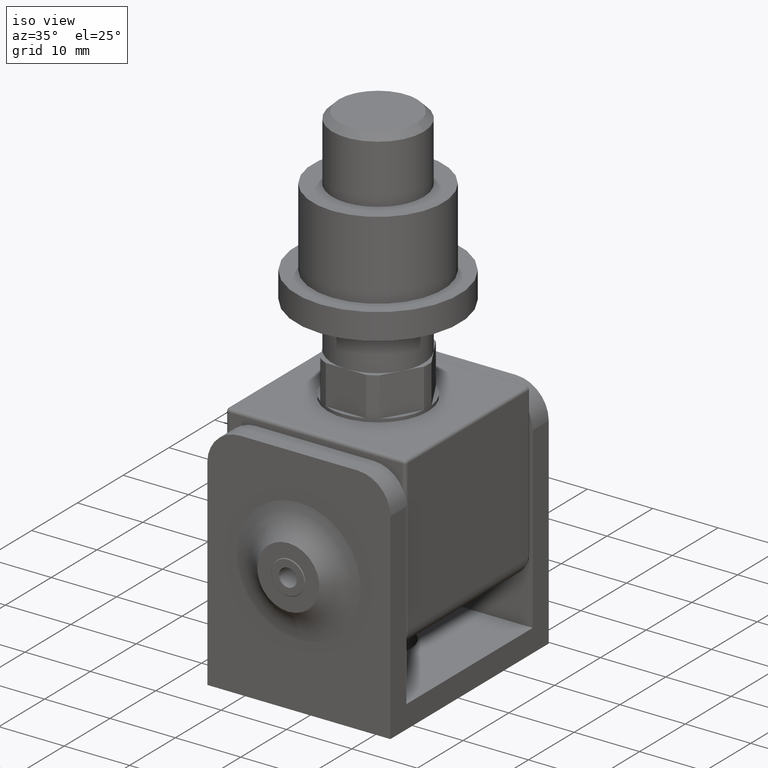
[diagram: clean part render]
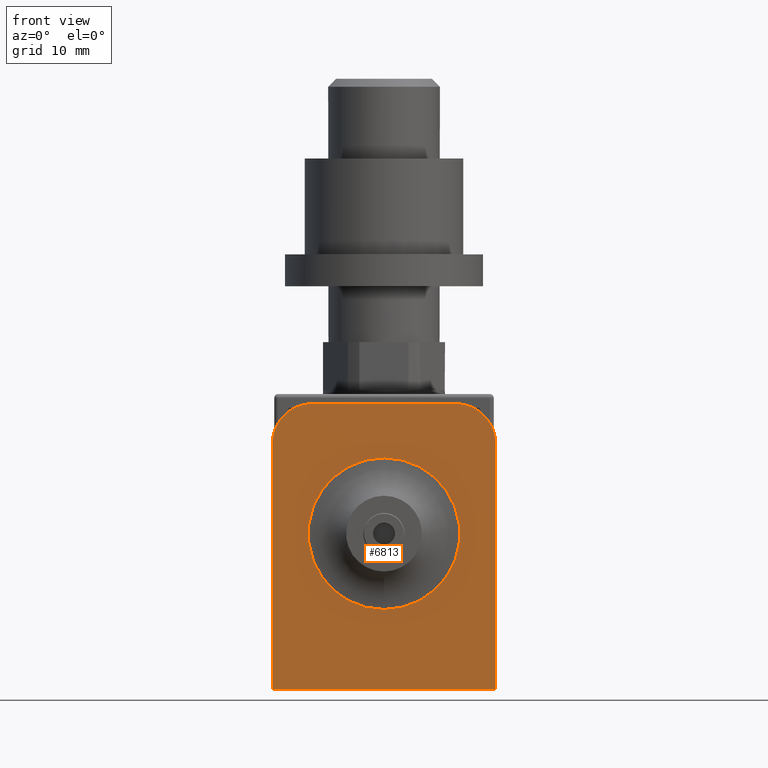
[diagram: tour spotlight — one face highlighted and labeled with its STEP entity id]
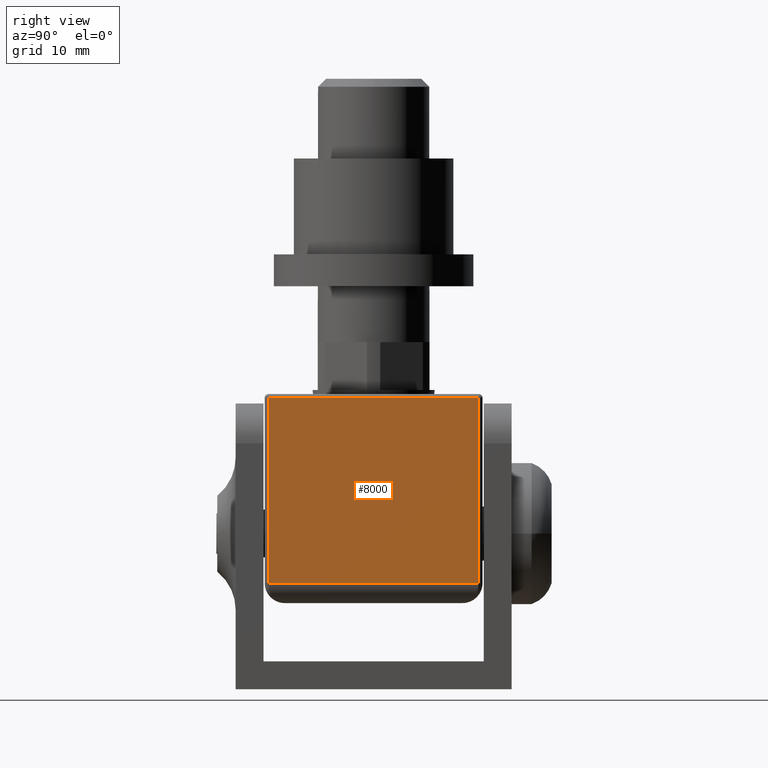
[diagram: tour spotlight — one face highlighted and labeled with its STEP entity id]
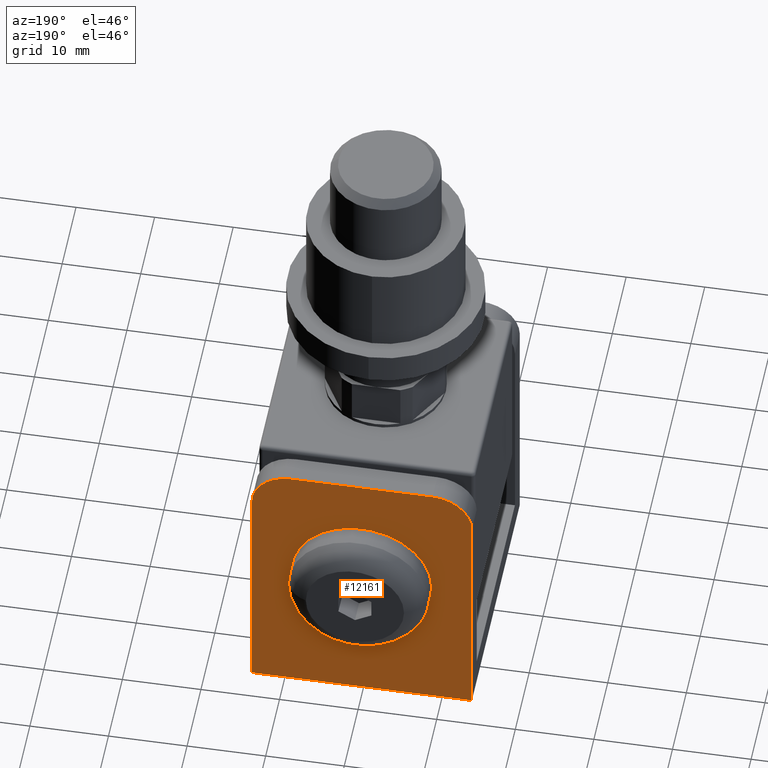
[diagram: tour spotlight — one face highlighted and labeled with its STEP entity id]
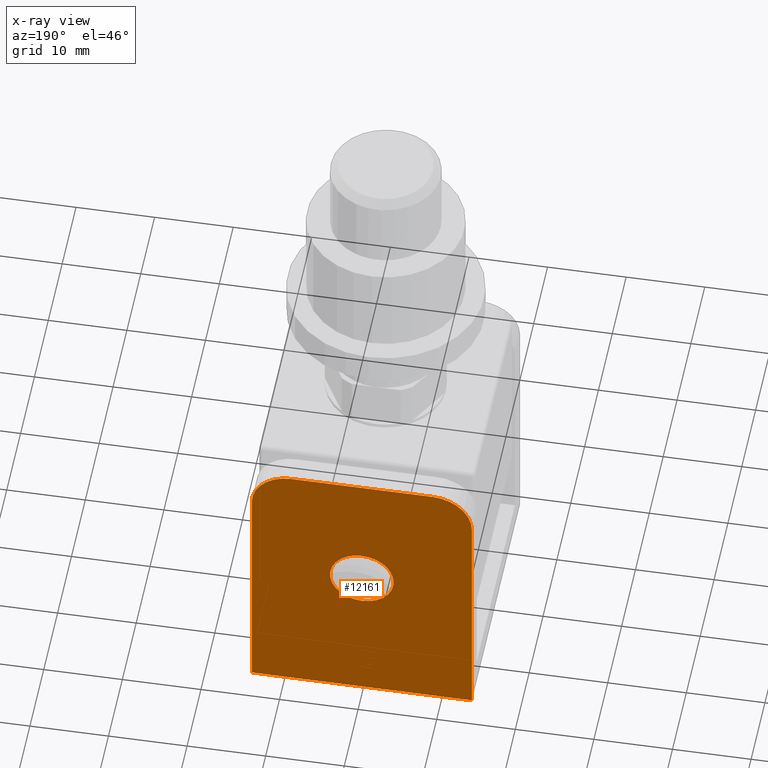
[diagram: x-ray of the same camera — body ghosted, this tour face saturated]
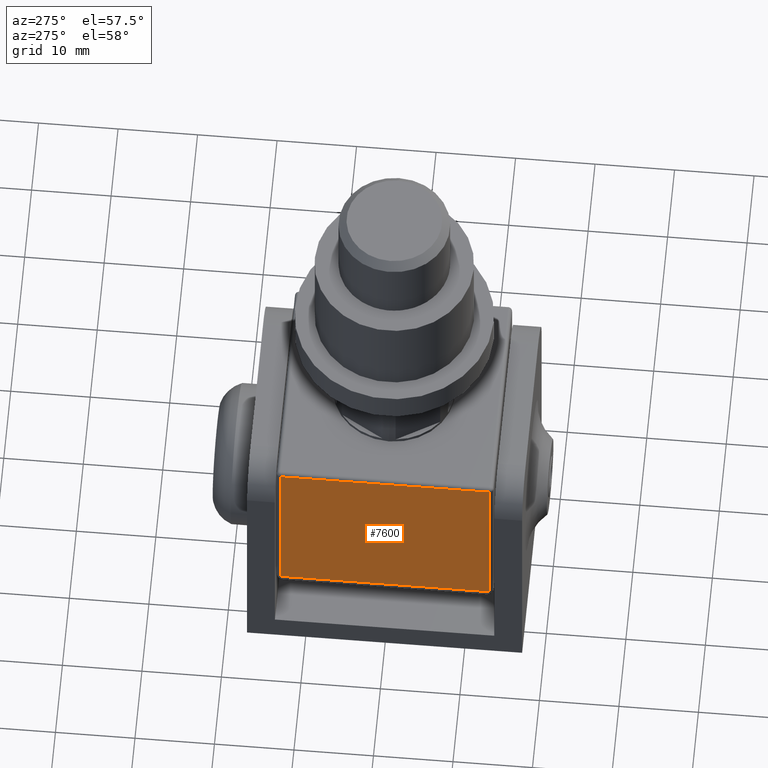
[diagram: tour spotlight — one face highlighted and labeled with its STEP entity id]
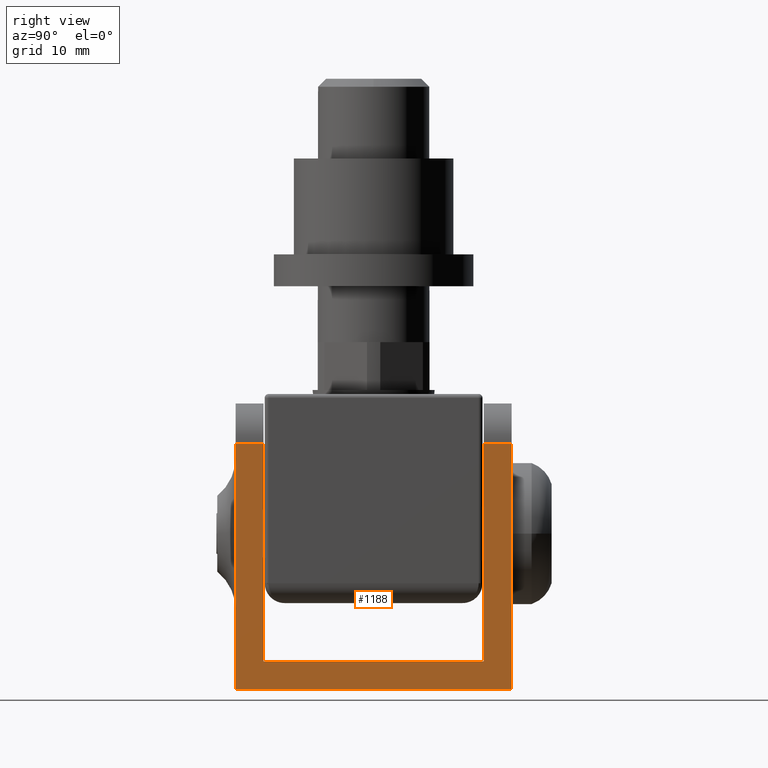
[diagram: tour spotlight — one face highlighted and labeled with its STEP entity id]
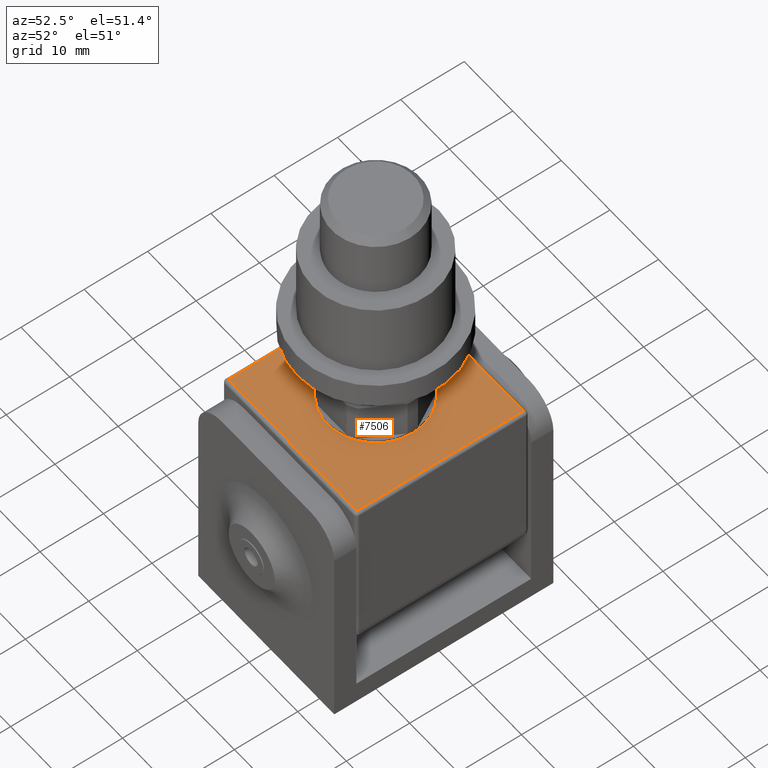
[diagram: tour spotlight — one face highlighted and labeled with its STEP entity id]
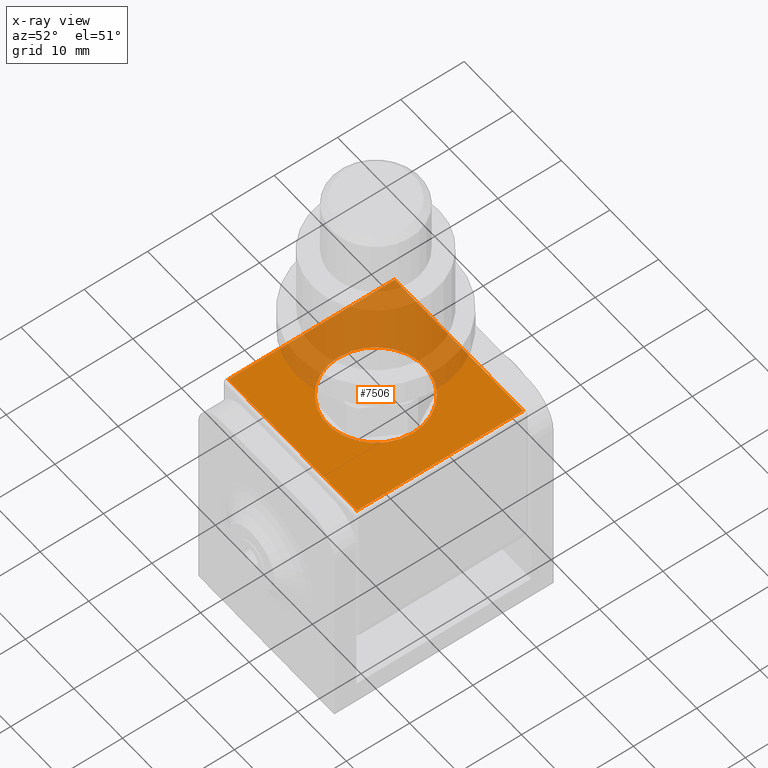
[diagram: x-ray of the same camera — body ghosted, this tour face saturated]
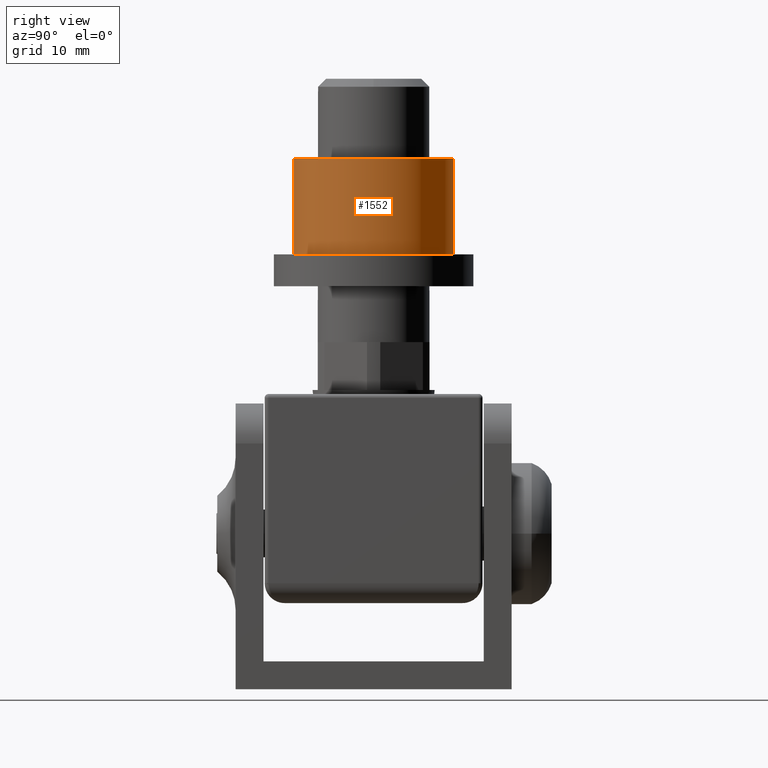
[diagram: tour spotlight — one face highlighted and labeled with its STEP entity id]
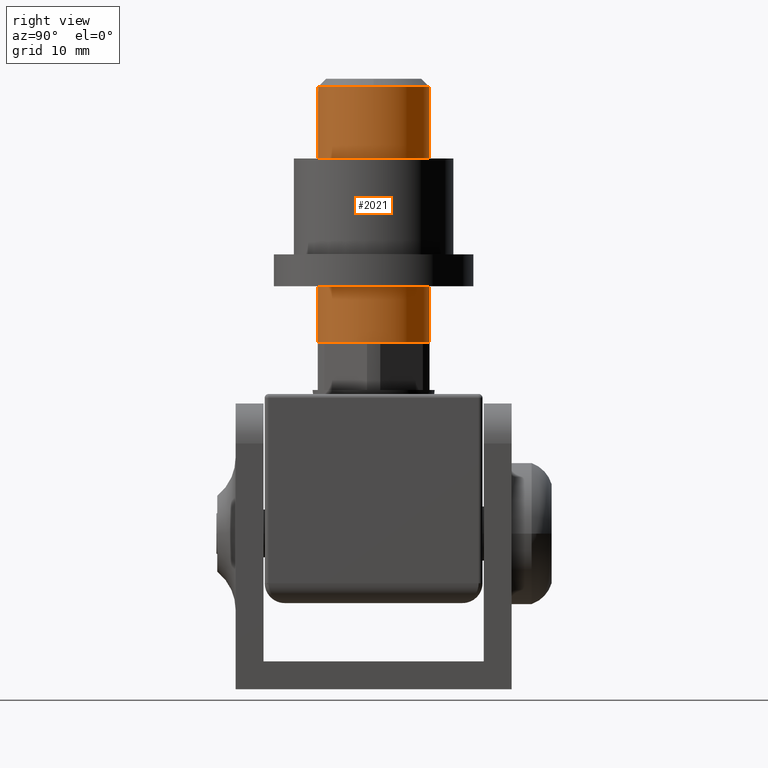
[diagram: tour spotlight — one face highlighted and labeled with its STEP entity id]
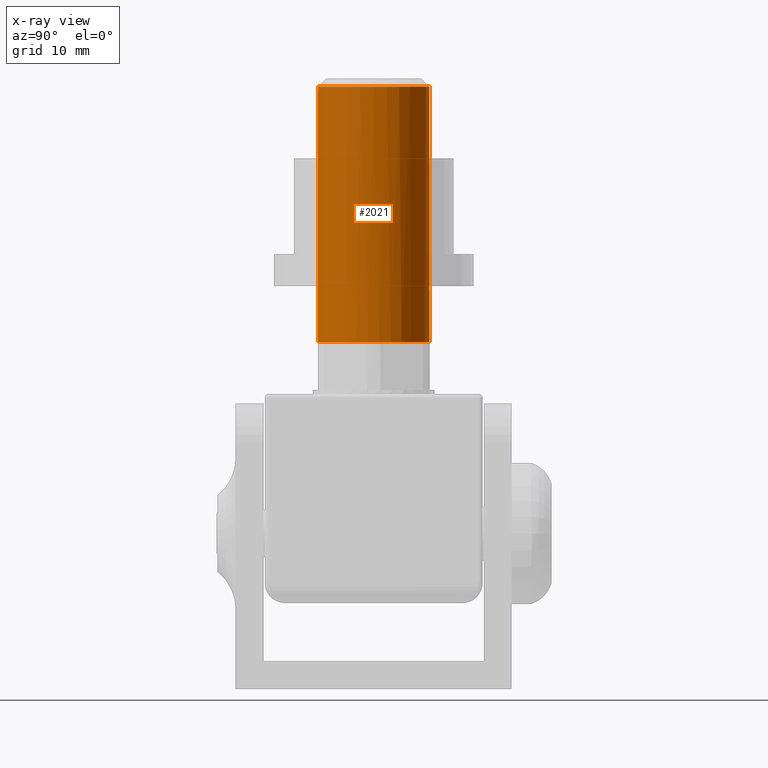
[diagram: x-ray of the same camera — body ghosted, this tour face saturated]
A machine part: a face-by-face anatomy tour. The part has 359 B-rep faces; the first image is the clean iso view, then the 8 largest visible faces are spotlighted one at a time (largest first), each with its STEP entity span.

Face 1 — front view, entity #6813. In plain terms, the highlighted planar face has unit normal (0, 1, 0).
Definition (entity closure, byte-faithful):
#114 = AXIS2_PLACEMENT_3D ( 'NONE', #11713, #4783, #436 ) ;
#273 = CARTESIAN_POINT ( 'NONE',  ( 14.00000000000000000, -17.30000000000000426, 17.90000000000000568 ) ) ;
#280 = EDGE_CURVE ( 'NONE', #5536, #10974, #11242, .T. ) ;
#282 = VERTEX_POINT ( 'NONE', #6825 ) ;
#419 = LINE ( 'NONE', #2019, #7124 ) ;
#436 = DIRECTION ( 'NONE',  ( 0.000000000000000000, 0.000000000000000000, 1.000000000000000000 ) ) ;
#725 = CARTESIAN_POINT ( 'NONE',  ( 14.00000000000000000, -17.29999999999999716, -17.90000000000000568 ) ) ;
#1218 = EDGE_CURVE ( 'NONE', #5536, #282, #9403, .T. ) ;
#1242 = VERTEX_POINT ( 'NONE', #11973 ) ;
#1745 = AXIS2_PLACEMENT_3D ( 'NONE', #725, #7737, #6489 ) ;
#2019 = CARTESIAN_POINT ( 'NONE',  ( -14.00000000000000000, -17.29999999999999716, -17.90000000000000568 ) ) ;
#3705 = LINE ( 'NONE', #5044, #12007 ) ;
#3893 = DIRECTION ( 'NONE',  ( -1.000000000000000000, -0.000000000000000000, -0.000000000000000000 ) ) ;
#4157 = CARTESIAN_POINT ( 'NONE',  ( 14.00000000000000000, -17.30000000000000426, 12.90000000000000213 ) ) ;
#4276 = VERTEX_POINT ( 'NONE', #14628 ) ;
#4336 = VECTOR ( 'NONE', #12957, 1000.000000000000000 ) ;
#4393 = DIRECTION ( 'NONE',  ( -0.000000000000000000, -1.000000000000000000, -6.599491484694385234E-16 ) ) ;
#4664 = VERTEX_POINT ( 'NONE', #9573 ) ;
#4783 = DIRECTION ( 'NONE',  ( 0.000000000000000000, -1.000000000000000000, -1.938238520644477159E-16 ) ) ;
#4824 = VERTEX_POINT ( 'NONE', #8900 ) ;
#5044 = CARTESIAN_POINT ( 'NONE',  ( 14.00000000000000000, -17.29999999999999716, -17.90000000000000568 ) ) ;
#5313 = PLANE ( 'NONE',  #1745 ) ;
#5536 = VERTEX_POINT ( 'NONE', #4157 ) ;
#5703 = EDGE_CURVE ( 'NONE', #10974, #4824, #3705, .T. ) ;
#5809 = DIRECTION ( 'NONE',  ( 0.000000000000000000, -1.000000000000000000, -1.938238520644477159E-16 ) ) ;
#5950 = FACE_BOUND ( 'NONE', #7409, .T. ) ;
#6087 = ORIENTED_EDGE ( 'NONE', *, *, #5703, .F. ) ;
#6489 = DIRECTION ( 'NONE',  ( 0.000000000000000000, -1.938238520644477159E-16, 1.000000000000000000 ) ) ;
#6628 = CARTESIAN_POINT ( 'NONE',  ( 14.00000000000000000, -17.29999999999999716, -17.90000000000000568 ) ) ;
#6780 = ORIENTED_EDGE ( 'NONE', *, *, #9171, .F. ) ;
#6813 = ADVANCED_FACE ( 'NONE', ( #5950, #8692 ), #5313, .F. ) ;
#6825 = CARTESIAN_POINT ( 'NONE',  ( 9.000000000000001776, -17.30000000000000426, 17.90000000000000568 ) ) ;
#6875 = ORIENTED_EDGE ( 'NONE', *, *, #12609, .T. ) ;
#6978 = DIRECTION ( 'NONE',  ( -0.000000000000000000, 1.938238520644477159E-16, -1.000000000000000000 ) ) ;
#7124 = VECTOR ( 'NONE', #12385, 1000.000000000000000 ) ;
#7409 = EDGE_LOOP ( 'NONE', ( #6780 ) ) ;
#7467 = AXIS2_PLACEMENT_3D ( 'NONE', #11312, #4393, #14775 ) ;
#7737 = DIRECTION ( 'NONE',  ( -0.000000000000000000, 1.000000000000000000, 1.938238520644477159E-16 ) ) ;
#7819 = CARTESIAN_POINT ( 'NONE',  ( -9.000000000000000000, -17.30000000000000426, 12.90000000000000213 ) ) ;
#8508 = ORIENTED_EDGE ( 'NONE', *, *, #14944, .T. ) ;
#8690 = CIRCLE ( 'NONE', #9978, 5.000000000000000888 ) ;
#8692 = FACE_OUTER_BOUND ( 'NONE', #11675, .T. ) ;
#8900 = CARTESIAN_POINT ( 'NONE',  ( -14.00000000000000000, -17.29999999999999716, -17.90000000000000568 ) ) ;
#9171 = EDGE_CURVE ( 'NONE', #1242, #1242, #10768, .T. ) ;
#9347 = CARTESIAN_POINT ( 'NONE',  ( 14.00000000000000000, -17.29999999999999716, -17.90000000000000568 ) ) ;
#9403 = CIRCLE ( 'NONE', #114, 5.000000000000000888 ) ;
#9573 = CARTESIAN_POINT ( 'NONE',  ( -14.00000000000000000, -17.30000000000000426, 12.90000000000000213 ) ) ;
#9683 = ORIENTED_EDGE ( 'NONE', *, *, #14350, .T. ) ;
#9978 = AXIS2_PLACEMENT_3D ( 'NONE', #7819, #5809, #11581 ) ;
#10768 = CIRCLE ( 'NONE', #7467, 9.500000000000000000 ) ;
#10845 = LINE ( 'NONE', #273, #4336 ) ;
#10974 = VERTEX_POINT ( 'NONE', #6628 ) ;
#11057 = VECTOR ( 'NONE', #6978, 1000.000000000000000 ) ;
#11242 = LINE ( 'NONE', #9347, #11057 ) ;
#11312 = CARTESIAN_POINT ( 'NONE',  ( 0.000000000000000000, -17.30000000000000782, 1.599999999999997202 ) ) ;
#11581 = DIRECTION ( 'NONE',  ( 0.000000000000000000, 0.000000000000000000, 1.000000000000000000 ) ) ;
#11675 = EDGE_LOOP ( 'NONE', ( #13602, #14122, #9683, #8508, #6875, #6087 ) ) ;
#11713 = CARTESIAN_POINT ( 'NONE',  ( 9.000000000000001776, -17.30000000000000426, 12.90000000000000213 ) ) ;
#11973 = CARTESIAN_POINT ( 'NONE',  ( 0.000000000000000000, -17.30000000000000071, -7.900000000000002132 ) ) ;
#12007 = VECTOR ( 'NONE', #3893, 1000.000000000000000 ) ;
#12385 = DIRECTION ( 'NONE',  ( -0.000000000000000000, 1.938238520644477159E-16, -1.000000000000000000 ) ) ;
#12609 = EDGE_CURVE ( 'NONE', #4664, #4824, #419, .T. ) ;
#12957 = DIRECTION ( 'NONE',  ( -1.000000000000000000, -0.000000000000000000, -0.000000000000000000 ) ) ;
#13602 = ORIENTED_EDGE ( 'NONE', *, *, #280, .F. ) ;
#14122 = ORIENTED_EDGE ( 'NONE', *, *, #1218, .T. ) ;
#14350 = EDGE_CURVE ( 'NONE', #282, #4276, #10845, .T. ) ;
#14628 = CARTESIAN_POINT ( 'NONE',  ( -9.000000000000000000, -17.30000000000000426, 17.90000000000000568 ) ) ;
#14775 = DIRECTION ( 'NONE',  ( 0.000000000000000000, 7.304098846218134667E-16, -1.000000000000000000 ) ) ;
#14944 = EDGE_CURVE ( 'NONE', #4276, #4664, #8690, .T. ) ;

Face 2 — right view, entity #8000. In plain terms, the highlighted planar face has unit normal (-1, 0, 0).
Definition (entity closure, byte-faithful):
#48 = CARTESIAN_POINT ( 'NONE',  ( 13.74999999999999822, 13.15000000000000036, 13.10000000000000142 ) ) ;
#953 = PLANE ( 'NONE',  #8869 ) ;
#1123 = LINE ( 'NONE', #5835, #4736 ) ;
#1486 = LINE ( 'NONE', #14090, #5476 ) ;
#2366 = CARTESIAN_POINT ( 'NONE',  ( 13.74999999999999822, 13.15000000000000036, 12.60000000000000142 ) ) ;
#2420 = EDGE_CURVE ( 'NONE', #6619, #10459, #1486, .T. ) ;
#2434 = ORIENTED_EDGE ( 'NONE', *, *, #2420, .T. ) ;
#2914 = EDGE_CURVE ( 'NONE', #5341, #4420, #11251, .T. ) ;
#2942 = VECTOR ( 'NONE', #6946, 1000.000000000000000 ) ;
#3010 = LINE ( 'NONE', #10613, #12939 ) ;
#3336 = DIRECTION ( 'NONE',  ( -1.000000000000000000, 0.000000000000000000, 1.324216393875425342E-16 ) ) ;
#4420 = VERTEX_POINT ( 'NONE', #2366 ) ;
#4736 = VECTOR ( 'NONE', #5669, 1000.000000000000000 ) ;
#5152 = ORIENTED_EDGE ( 'NONE', *, *, #2914, .T. ) ;
#5341 = VERTEX_POINT ( 'NONE', #14450 ) ;
#5476 = VECTOR ( 'NONE', #8431, 1000.000000000000000 ) ;
#5669 = DIRECTION ( 'NONE',  ( 0.000000000000000000, -1.000000000000000000, 0.000000000000000000 ) ) ;
#5835 = CARTESIAN_POINT ( 'NONE',  ( 13.74999999999999822, 13.65000000000000036, 12.60000000000000142 ) ) ;
#6619 = VERTEX_POINT ( 'NONE', #10035 ) ;
#6772 = CARTESIAN_POINT ( 'NONE',  ( 13.74999999999999467, 13.65000000000000036, -13.09999999999999787 ) ) ;
#6946 = DIRECTION ( 'NONE',  ( 1.324216393875425342E-16, -0.000000000000000000, 1.000000000000000000 ) ) ;
#7592 = ORIENTED_EDGE ( 'NONE', *, *, #9637, .T. ) ;
#8000 = ADVANCED_FACE ( 'NONE', ( #11339 ), #953, .F. ) ;
#8431 = DIRECTION ( 'NONE',  ( -1.324216393875425342E-16, 0.000000000000000000, -1.000000000000000000 ) ) ;
#8869 = AXIS2_PLACEMENT_3D ( 'NONE', #6772, #3336, #9071 ) ;
#8970 = EDGE_LOOP ( 'NONE', ( #9871, #2434, #7592, #5152 ) ) ;
#9071 = DIRECTION ( 'NONE',  ( 1.324216393875425342E-16, 0.000000000000000000, 1.000000000000000000 ) ) ;
#9637 = EDGE_CURVE ( 'NONE', #10459, #5341, #3010, .T. ) ;
#9871 = ORIENTED_EDGE ( 'NONE', *, *, #13121, .T. ) ;
#10035 = CARTESIAN_POINT ( 'NONE',  ( 13.74999999999999822, -13.15000000000000036, 12.60000000000000142 ) ) ;
#10459 = VERTEX_POINT ( 'NONE', #12645 ) ;
#10613 = CARTESIAN_POINT ( 'NONE',  ( 13.74999999999999467, 13.65000000000000036, -10.59999999999999609 ) ) ;
#10761 = DIRECTION ( 'NONE',  ( -0.000000000000000000, 1.000000000000000000, -0.000000000000000000 ) ) ;
#11251 = LINE ( 'NONE', #48, #2942 ) ;
#11339 = FACE_OUTER_BOUND ( 'NONE', #8970, .T. ) ;
#12645 = CARTESIAN_POINT ( 'NONE',  ( 13.74999999999999467, -13.15000000000000036, -10.59999999999999609 ) ) ;
#12939 = VECTOR ( 'NONE', #10761, 1000.000000000000000 ) ;
#13121 = EDGE_CURVE ( 'NONE', #4420, #6619, #1123, .T. ) ;
#14090 = CARTESIAN_POINT ( 'NONE',  ( 13.74999999999999467, -13.15000000000000036, -13.09999999999999787 ) ) ;
#14450 = CARTESIAN_POINT ( 'NONE',  ( 13.74999999999999467, 13.15000000000000036, -10.59999999999999609 ) ) ;

Face 3 — auxiliary view, entity #12161. An x-ray twin of the same camera follows (body ghosted, this face saturated) — the face is partly hidden behind the body. In plain terms, the highlighted planar face has unit normal (0, -1, -0).
Definition (entity closure, byte-faithful):
#1 = DIRECTION ( 'NONE',  ( 1.040834085586084059E-15, 0.000000000000000000, -1.000000000000000000 ) ) ;
#717 = VECTOR ( 'NONE', #9428, 1000.000000000000000 ) ;
#963 = AXIS2_PLACEMENT_3D ( 'NONE', #8272, #2466, #12838 ) ;
#1162 = EDGE_CURVE ( 'NONE', #13571, #2317, #4231, .T. ) ;
#1254 = ORIENTED_EDGE ( 'NONE', *, *, #5226, .F. ) ;
#1440 = AXIS2_PLACEMENT_3D ( 'NONE', #13498, #12744, #1 ) ;
#1564 = DIRECTION ( 'NONE',  ( 0.000000000000000000, -1.000000000000000000, -9.691192603222388261E-17 ) ) ;
#1839 = LINE ( 'NONE', #8618, #11617 ) ;
#1961 = VECTOR ( 'NONE', #11190, 1000.000000000000000 ) ;
#1973 = DIRECTION ( 'NONE',  ( -0.000000000000000000, -9.691192603222388261E-17, 1.000000000000000000 ) ) ;
#1983 = DIRECTION ( 'NONE',  ( -0.000000000000000000, 1.000000000000000000, 9.691192603222388261E-17 ) ) ;
#2046 = EDGE_CURVE ( 'NONE', #13182, #13182, #5652, .T. ) ;
#2317 = VERTEX_POINT ( 'NONE', #9241 ) ;
#2466 = DIRECTION ( 'NONE',  ( 0.000000000000000000, 1.000000000000000000, 1.101411730778924924E-16 ) ) ;
#2891 = CARTESIAN_POINT ( 'NONE',  ( 14.00000000000000000, 17.30000000000000071, 12.90000000000000213 ) ) ;
#3160 = DIRECTION ( 'NONE',  ( 0.000000000000000000, 0.000000000000000000, -1.000000000000000000 ) ) ;
#3639 = ORIENTED_EDGE ( 'NONE', *, *, #2046, .F. ) ;
#4119 = ORIENTED_EDGE ( 'NONE', *, *, #1162, .T. ) ;
#4231 = LINE ( 'NONE', #8944, #12730 ) ;
#4322 = CARTESIAN_POINT ( 'NONE',  ( 14.00000000000000000, 17.30000000000000426, -17.90000000000000568 ) ) ;
#5226 = EDGE_CURVE ( 'NONE', #5683, #11842, #9938, .T. ) ;
#5236 = DIRECTION ( 'NONE',  ( -1.000000000000000000, -0.000000000000000000, -0.000000000000000000 ) ) ;
#5374 = CARTESIAN_POINT ( 'NONE',  ( -9.000000000000000000, 17.30000000000000071, 17.89999999999999858 ) ) ;
#5519 = ORIENTED_EDGE ( 'NONE', *, *, #7447, .T. ) ;
#5581 = LINE ( 'NONE', #4322, #1961 ) ;
#5652 = CIRCLE ( 'NONE', #963, 4.049999999999999822 ) ;
#5683 = VERTEX_POINT ( 'NONE', #9182 ) ;
#6464 = CIRCLE ( 'NONE', #13255, 5.000000000000000888 ) ;
#7248 = ORIENTED_EDGE ( 'NONE', *, *, #14555, .T. ) ;
#7272 = CARTESIAN_POINT ( 'NONE',  ( -14.00000000000000000, 17.30000000000000426, -17.90000000000000568 ) ) ;
#7305 = FACE_BOUND ( 'NONE', #13537, .T. ) ;
#7447 = EDGE_CURVE ( 'NONE', #13409, #11842, #6464, .T. ) ;
#8272 = CARTESIAN_POINT ( 'NONE',  ( 0.000000000000000000, 17.30000000000000426, 1.599999999999997202 ) ) ;
#8301 = CARTESIAN_POINT ( 'NONE',  ( 14.00000000000000000, 17.30000000000000071, 17.89999999999999858 ) ) ;
#8417 = CARTESIAN_POINT ( 'NONE',  ( 9.000000000000001776, 17.30000000000000071, 17.89999999999999858 ) ) ;
#8618 = CARTESIAN_POINT ( 'NONE',  ( 14.00000000000000000, 17.30000000000000071, 17.89999999999999858 ) ) ;
#8944 = CARTESIAN_POINT ( 'NONE',  ( -14.00000000000000000, 17.30000000000000071, 17.89999999999999858 ) ) ;
#8957 = CARTESIAN_POINT ( 'NONE',  ( 9.000000000000001776, 17.30000000000000071, 12.90000000000000213 ) ) ;
#9182 = CARTESIAN_POINT ( 'NONE',  ( 14.00000000000000000, 17.30000000000000426, -17.90000000000000568 ) ) ;
#9241 = CARTESIAN_POINT ( 'NONE',  ( -14.00000000000000000, 17.30000000000000071, 12.90000000000000213 ) ) ;
#9395 = CIRCLE ( 'NONE', #1440, 5.000000000000000888 ) ;
#9428 = DIRECTION ( 'NONE',  ( -0.000000000000000000, -9.691192603222388261E-17, 1.000000000000000000 ) ) ;
#9938 = LINE ( 'NONE', #8301, #717 ) ;
#10633 = ORIENTED_EDGE ( 'NONE', *, *, #14934, .T. ) ;
#10752 = AXIS2_PLACEMENT_3D ( 'NONE', #13696, #1564, #12270 ) ;
#11190 = DIRECTION ( 'NONE',  ( -1.000000000000000000, -0.000000000000000000, -0.000000000000000000 ) ) ;
#11617 = VECTOR ( 'NONE', #5236, 1000.000000000000000 ) ;
#11842 = VERTEX_POINT ( 'NONE', #2891 ) ;
#12161 = ADVANCED_FACE ( 'NONE', ( #7305, #14009 ), #13642, .F. ) ;
#12212 = EDGE_LOOP ( 'NONE', ( #12679, #5519, #1254, #7248, #4119, #10633 ) ) ;
#12270 = DIRECTION ( 'NONE',  ( 0.000000000000000000, 9.691192603222388261E-17, -1.000000000000000000 ) ) ;
#12679 = ORIENTED_EDGE ( 'NONE', *, *, #12882, .F. ) ;
#12730 = VECTOR ( 'NONE', #1973, 1000.000000000000000 ) ;
#12744 = DIRECTION ( 'NONE',  ( -0.000000000000000000, 1.000000000000000000, 9.691192603222388261E-17 ) ) ;
#12838 = DIRECTION ( 'NONE',  ( 0.000000000000000000, 0.000000000000000000, 1.000000000000000000 ) ) ;
#12882 = EDGE_CURVE ( 'NONE', #13409, #14559, #1839, .T. ) ;
#13182 = VERTEX_POINT ( 'NONE', #14282 ) ;
#13255 = AXIS2_PLACEMENT_3D ( 'NONE', #8957, #1983, #3160 ) ;
#13409 = VERTEX_POINT ( 'NONE', #8417 ) ;
#13498 = CARTESIAN_POINT ( 'NONE',  ( -9.000000000000000000, 17.30000000000000071, 12.90000000000000213 ) ) ;
#13537 = EDGE_LOOP ( 'NONE', ( #3639 ) ) ;
#13571 = VERTEX_POINT ( 'NONE', #7272 ) ;
#13642 = PLANE ( 'NONE',  #10752 ) ;
#13696 = CARTESIAN_POINT ( 'NONE',  ( 14.00000000000000000, 17.30000000000000071, 17.89999999999999858 ) ) ;
#14009 = FACE_OUTER_BOUND ( 'NONE', #12212, .T. ) ;
#14282 = CARTESIAN_POINT ( 'NONE',  ( 0.000000000000000000, 17.30000000000000426, 5.649999999999996803 ) ) ;
#14555 = EDGE_CURVE ( 'NONE', #5683, #13571, #5581, .T. ) ;
#14559 = VERTEX_POINT ( 'NONE', #5374 ) ;
#14934 = EDGE_CURVE ( 'NONE', #2317, #14559, #9395, .T. ) ;

Face 4 — auxiliary view, entity #7600. In plain terms, the highlighted planar face has unit normal (1, 0, -0).
Definition (entity closure, byte-faithful):
#71 = CARTESIAN_POINT ( 'NONE',  ( -13.75000000000000355, -13.15000000000000036, -13.09999999999999787 ) ) ;
#83 = VERTEX_POINT ( 'NONE', #1316 ) ;
#124 = DIRECTION ( 'NONE',  ( 1.324216393875425342E-16, -0.000000000000000000, 1.000000000000000000 ) ) ;
#1316 = CARTESIAN_POINT ( 'NONE',  ( -13.75000000000000000, -13.15000000000000036, 12.60000000000000142 ) ) ;
#1852 = CARTESIAN_POINT ( 'NONE',  ( -13.75000000000000000, 13.65000000000000036, 12.60000000000000142 ) ) ;
#2323 = CARTESIAN_POINT ( 'NONE',  ( -13.75000000000000355, 13.65000000000000036, -10.59999999999999609 ) ) ;
#2381 = ORIENTED_EDGE ( 'NONE', *, *, #8364, .T. ) ;
#2753 = LINE ( 'NONE', #71, #4203 ) ;
#3038 = FACE_OUTER_BOUND ( 'NONE', #14922, .T. ) ;
#3240 = DIRECTION ( 'NONE',  ( -0.000000000000000000, 1.000000000000000000, -0.000000000000000000 ) ) ;
#4037 = VECTOR ( 'NONE', #11465, 1000.000000000000000 ) ;
#4100 = VECTOR ( 'NONE', #4899, 1000.000000000000000 ) ;
#4203 = VECTOR ( 'NONE', #124, 1000.000000000000000 ) ;
#4310 = CARTESIAN_POINT ( 'NONE',  ( -13.75000000000000355, 13.15000000000000036, -10.59999999999999609 ) ) ;
#4318 = EDGE_CURVE ( 'NONE', #83, #10394, #8727, .T. ) ;
#4831 = VERTEX_POINT ( 'NONE', #5370 ) ;
#4899 = DIRECTION ( 'NONE',  ( -1.324216393875425342E-16, -0.000000000000000000, -1.000000000000000000 ) ) ;
#5200 = AXIS2_PLACEMENT_3D ( 'NONE', #12653, #14864, #14810 ) ;
#5370 = CARTESIAN_POINT ( 'NONE',  ( -13.75000000000000355, -13.15000000000000036, -10.59999999999999609 ) ) ;
#5477 = ORIENTED_EDGE ( 'NONE', *, *, #11977, .T. ) ;
#6097 = LINE ( 'NONE', #12709, #4100 ) ;
#7600 = ADVANCED_FACE ( 'NONE', ( #3038 ), #12499, .F. ) ;
#8364 = EDGE_CURVE ( 'NONE', #10394, #12561, #6097, .T. ) ;
#8727 = LINE ( 'NONE', #1852, #10867 ) ;
#9081 = ORIENTED_EDGE ( 'NONE', *, *, #4318, .T. ) ;
#10095 = CARTESIAN_POINT ( 'NONE',  ( -13.75000000000000000, 13.15000000000000036, 12.60000000000000142 ) ) ;
#10394 = VERTEX_POINT ( 'NONE', #10095 ) ;
#10867 = VECTOR ( 'NONE', #3240, 1000.000000000000000 ) ;
#11465 = DIRECTION ( 'NONE',  ( 0.000000000000000000, -1.000000000000000000, 0.000000000000000000 ) ) ;
#11977 = EDGE_CURVE ( 'NONE', #12561, #4831, #14554, .T. ) ;
#12499 = PLANE ( 'NONE',  #5200 ) ;
#12561 = VERTEX_POINT ( 'NONE', #4310 ) ;
#12653 = CARTESIAN_POINT ( 'NONE',  ( -13.75000000000000355, 13.65000000000000036, -13.09999999999999787 ) ) ;
#12709 = CARTESIAN_POINT ( 'NONE',  ( -13.75000000000000355, 13.15000000000000036, -10.59999999999999609 ) ) ;
#13179 = EDGE_CURVE ( 'NONE', #4831, #83, #2753, .T. ) ;
#14554 = LINE ( 'NONE', #2323, #4037 ) ;
#14810 = DIRECTION ( 'NONE',  ( -1.324216393875425342E-16, 0.000000000000000000, -1.000000000000000000 ) ) ;
#14864 = DIRECTION ( 'NONE',  ( 1.000000000000000000, 0.000000000000000000, -1.324216393875425342E-16 ) ) ;
#14922 = EDGE_LOOP ( 'NONE', ( #5477, #14929, #9081, #2381 ) ) ;
#14929 = ORIENTED_EDGE ( 'NONE', *, *, #13179, .T. ) ;

Face 5 — right view, entity #1188. In plain terms, the highlighted planar face has unit normal (-1, 0, 0).
Definition (entity closure, byte-faithful):
#280 = EDGE_CURVE ( 'NONE', #5536, #10974, #11242, .T. ) ;
#717 = VECTOR ( 'NONE', #9428, 1000.000000000000000 ) ;
#946 = VECTOR ( 'NONE', #4692, 1000.000000000000000 ) ;
#1175 = ORIENTED_EDGE ( 'NONE', *, *, #280, .T. ) ;
#1188 = ADVANCED_FACE ( 'NONE', ( #1310 ), #14894, .F. ) ;
#1310 = FACE_OUTER_BOUND ( 'NONE', #10585, .T. ) ;
#1346 = VERTEX_POINT ( 'NONE', #11562 ) ;
#1538 = ORIENTED_EDGE ( 'NONE', *, *, #11225, .T. ) ;
#2121 = ORIENTED_EDGE ( 'NONE', *, *, #7287, .T. ) ;
#2174 = DIRECTION ( 'NONE',  ( 0.000000000000000000, -1.000000000000000000, 9.912705577010318647E-16 ) ) ;
#2300 = ORIENTED_EDGE ( 'NONE', *, *, #5226, .T. ) ;
#2891 = CARTESIAN_POINT ( 'NONE',  ( 14.00000000000000000, 17.30000000000000071, 12.90000000000000213 ) ) ;
#3062 = ORIENTED_EDGE ( 'NONE', *, *, #3572, .T. ) ;
#3276 = CARTESIAN_POINT ( 'NONE',  ( 14.00000000000000000, -13.79999999999999893, -14.39999999999998970 ) ) ;
#3535 = CARTESIAN_POINT ( 'NONE',  ( 14.00000000000000000, 0.000000000000000000, 12.90000000000000213 ) ) ;
#3572 = EDGE_CURVE ( 'NONE', #11842, #1346, #6004, .T. ) ;
#3736 = EDGE_CURVE ( 'NONE', #5753, #5536, #14154, .T. ) ;
#3918 = VECTOR ( 'NONE', #6391, 1000.000000000000000 ) ;
#3935 = CARTESIAN_POINT ( 'NONE',  ( 14.00000000000000000, 1.278739019434329743E-14, 12.89999999999998792 ) ) ;
#4157 = CARTESIAN_POINT ( 'NONE',  ( 14.00000000000000000, -17.30000000000000426, 12.90000000000000213 ) ) ;
#4592 = DIRECTION ( 'NONE',  ( -0.000000000000000000, -0.000000000000000000, -1.000000000000000000 ) ) ;
#4692 = DIRECTION ( 'NONE',  ( 0.000000000000000000, -1.000000000000000000, 0.000000000000000000 ) ) ;
#4704 = LINE ( 'NONE', #5473, #5429 ) ;
#4808 = VECTOR ( 'NONE', #4592, 1000.000000000000000 ) ;
#4829 = VERTEX_POINT ( 'NONE', #6543 ) ;
#4916 = EDGE_CURVE ( 'NONE', #4829, #13804, #4704, .T. ) ;
#5071 = ORIENTED_EDGE ( 'NONE', *, *, #3736, .T. ) ;
#5226 = EDGE_CURVE ( 'NONE', #5683, #11842, #9938, .T. ) ;
#5429 = VECTOR ( 'NONE', #5658, 1000.000000000000000 ) ;
#5473 = CARTESIAN_POINT ( 'NONE',  ( 14.00000000000000000, -13.79999999999999893, -14.39999999999998970 ) ) ;
#5536 = VERTEX_POINT ( 'NONE', #4157 ) ;
#5603 = CARTESIAN_POINT ( 'NONE',  ( 14.00000000000000000, 0.000000000000000000, 0.000000000000000000 ) ) ;
#5658 = DIRECTION ( 'NONE',  ( -0.000000000000000000, -1.000000000000000000, -0.000000000000000000 ) ) ;
#5683 = VERTEX_POINT ( 'NONE', #9182 ) ;
#5753 = VERTEX_POINT ( 'NONE', #13248 ) ;
#5915 = CARTESIAN_POINT ( 'NONE',  ( 14.00000000000000000, 13.79999999999999893, -14.39999999999998970 ) ) ;
#6004 = LINE ( 'NONE', #3535, #946 ) ;
#6391 = DIRECTION ( 'NONE',  ( -0.000000000000000000, 1.000000000000000000, 1.002730332934570644E-16 ) ) ;
#6543 = CARTESIAN_POINT ( 'NONE',  ( 14.00000000000000000, 13.79999999999999893, -14.39999999999998970 ) ) ;
#6628 = CARTESIAN_POINT ( 'NONE',  ( 14.00000000000000000, -17.29999999999999716, -17.90000000000000568 ) ) ;
#6978 = DIRECTION ( 'NONE',  ( -0.000000000000000000, 1.938238520644477159E-16, -1.000000000000000000 ) ) ;
#7287 = EDGE_CURVE ( 'NONE', #13804, #5753, #10983, .T. ) ;
#7660 = ORIENTED_EDGE ( 'NONE', *, *, #8224, .T. ) ;
#7847 = DIRECTION ( 'NONE',  ( -0.000000000000000000, -0.000000000000000000, 1.000000000000000000 ) ) ;
#8224 = EDGE_CURVE ( 'NONE', #10974, #5683, #9521, .T. ) ;
#8301 = CARTESIAN_POINT ( 'NONE',  ( 14.00000000000000000, 17.30000000000000071, 17.89999999999999858 ) ) ;
#8317 = VECTOR ( 'NONE', #7847, 1000.000000000000000 ) ;
#9169 = ORIENTED_EDGE ( 'NONE', *, *, #4916, .T. ) ;
#9182 = CARTESIAN_POINT ( 'NONE',  ( 14.00000000000000000, 17.30000000000000426, -17.90000000000000568 ) ) ;
#9227 = DIRECTION ( 'NONE',  ( -1.000000000000000000, 0.000000000000000000, 0.000000000000000000 ) ) ;
#9347 = CARTESIAN_POINT ( 'NONE',  ( 14.00000000000000000, -17.29999999999999716, -17.90000000000000568 ) ) ;
#9428 = DIRECTION ( 'NONE',  ( -0.000000000000000000, -9.691192603222388261E-17, 1.000000000000000000 ) ) ;
#9521 = LINE ( 'NONE', #14409, #3918 ) ;
#9881 = LINE ( 'NONE', #5915, #4808 ) ;
#9938 = LINE ( 'NONE', #8301, #717 ) ;
#10585 = EDGE_LOOP ( 'NONE', ( #2300, #3062, #1538, #9169, #2121, #5071, #1175, #7660 ) ) ;
#10974 = VERTEX_POINT ( 'NONE', #6628 ) ;
#10983 = LINE ( 'NONE', #11041, #8317 ) ;
#11041 = CARTESIAN_POINT ( 'NONE',  ( 14.00000000000000000, -13.79999999999999893, 17.89999999999999858 ) ) ;
#11057 = VECTOR ( 'NONE', #6978, 1000.000000000000000 ) ;
#11225 = EDGE_CURVE ( 'NONE', #1346, #4829, #9881, .T. ) ;
#11242 = LINE ( 'NONE', #9347, #11057 ) ;
#11477 = DIRECTION ( 'NONE',  ( 0.000000000000000000, 0.000000000000000000, 1.000000000000000000 ) ) ;
#11562 = CARTESIAN_POINT ( 'NONE',  ( 14.00000000000000000, 13.79999999999999893, 12.90000000000000213 ) ) ;
#11842 = VERTEX_POINT ( 'NONE', #2891 ) ;
#12869 = VECTOR ( 'NONE', #2174, 1000.000000000000000 ) ;
#13248 = CARTESIAN_POINT ( 'NONE',  ( 14.00000000000000000, -13.79999999999999893, 12.90000000000000213 ) ) ;
#13587 = AXIS2_PLACEMENT_3D ( 'NONE', #5603, #9227, #11477 ) ;
#13804 = VERTEX_POINT ( 'NONE', #3276 ) ;
#14154 = LINE ( 'NONE', #3935, #12869 ) ;
#14409 = CARTESIAN_POINT ( 'NONE',  ( 14.00000000000000000, 17.30000000000000426, -17.90000000000000568 ) ) ;
#14894 = PLANE ( 'NONE',  #13587 ) ;

Face 6 — auxiliary view, entity #7506. An x-ray twin of the same camera follows (body ghosted, this face saturated) — the face is partly hidden behind the body. In plain terms, the highlighted planar face has unit normal (0, 0, -1).
Definition (entity closure, byte-faithful):
#31 = EDGE_LOOP ( 'NONE', ( #2563 ) ) ;
#468 = LINE ( 'NONE', #12283, #9849 ) ;
#527 = VERTEX_POINT ( 'NONE', #7385 ) ;
#992 = ORIENTED_EDGE ( 'NONE', *, *, #5431, .T. ) ;
#1191 = VECTOR ( 'NONE', #2670, 1000.000000000000000 ) ;
#1250 = LINE ( 'NONE', #12280, #11764 ) ;
#2133 = CARTESIAN_POINT ( 'NONE',  ( 0.000000000000000000, 0.000000000000000000, 13.10000000000000142 ) ) ;
#2364 = VERTEX_POINT ( 'NONE', #13937 ) ;
#2563 = ORIENTED_EDGE ( 'NONE', *, *, #8912, .F. ) ;
#2670 = DIRECTION ( 'NONE',  ( -1.000000000000000000, -0.000000000000000000, -0.000000000000000000 ) ) ;
#2674 = CARTESIAN_POINT ( 'NONE',  ( -7.650000000000000355, 0.000000000000000000, 13.10000000000000142 ) ) ;
#2865 = ORIENTED_EDGE ( 'NONE', *, *, #10160, .T. ) ;
#4362 = DIRECTION ( 'NONE',  ( 0.000000000000000000, -1.000000000000000000, 0.000000000000000000 ) ) ;
#4572 = DIRECTION ( 'NONE',  ( -1.000000000000000000, 0.000000000000000000, -0.000000000000000000 ) ) ;
#4781 = ORIENTED_EDGE ( 'NONE', *, *, #10450, .T. ) ;
#5186 = LINE ( 'NONE', #5418, #8139 ) ;
#5338 = CIRCLE ( 'NONE', #10043, 7.650000000000000355 ) ;
#5418 = CARTESIAN_POINT ( 'NONE',  ( -13.25000000000000000, 13.65000000000000036, 13.10000000000000142 ) ) ;
#5431 = EDGE_CURVE ( 'NONE', #527, #2364, #1250, .T. ) ;
#5570 = CARTESIAN_POINT ( 'NONE',  ( -13.75000000000000000, 13.65000000000000036, 13.10000000000000142 ) ) ;
#5994 = AXIS2_PLACEMENT_3D ( 'NONE', #5570, #11443, #4572 ) ;
#6846 = FACE_OUTER_BOUND ( 'NONE', #10977, .T. ) ;
#6859 = VERTEX_POINT ( 'NONE', #2674 ) ;
#6861 = EDGE_CURVE ( 'NONE', #12044, #527, #5186, .T. ) ;
#7022 = VERTEX_POINT ( 'NONE', #12933 ) ;
#7130 = ORIENTED_EDGE ( 'NONE', *, *, #6861, .T. ) ;
#7186 = CARTESIAN_POINT ( 'NONE',  ( -13.75000000000000000, 13.15000000000000036, 13.10000000000000142 ) ) ;
#7385 = CARTESIAN_POINT ( 'NONE',  ( -13.25000000000000000, -13.15000000000000036, 13.10000000000000142 ) ) ;
#7506 = ADVANCED_FACE ( 'NONE', ( #12245, #6846 ), #10186, .F. ) ;
#8139 = VECTOR ( 'NONE', #4362, 1000.000000000000000 ) ;
#8912 = EDGE_CURVE ( 'NONE', #6859, #6859, #5338, .T. ) ;
#9849 = VECTOR ( 'NONE', #13822, 1000.000000000000000 ) ;
#10017 = DIRECTION ( 'NONE',  ( -1.000000000000000000, 0.000000000000000000, 0.000000000000000000 ) ) ;
#10043 = AXIS2_PLACEMENT_3D ( 'NONE', #2133, #10221, #10017 ) ;
#10160 = EDGE_CURVE ( 'NONE', #7022, #12044, #12568, .T. ) ;
#10186 = PLANE ( 'NONE',  #5994 ) ;
#10221 = DIRECTION ( 'NONE',  ( -0.000000000000000000, -0.000000000000000000, 1.000000000000000000 ) ) ;
#10450 = EDGE_CURVE ( 'NONE', #2364, #7022, #468, .T. ) ;
#10977 = EDGE_LOOP ( 'NONE', ( #2865, #7130, #992, #4781 ) ) ;
#11022 = DIRECTION ( 'NONE',  ( 1.000000000000000000, -0.000000000000000000, 0.000000000000000000 ) ) ;
#11443 = DIRECTION ( 'NONE',  ( 0.000000000000000000, 0.000000000000000000, -1.000000000000000000 ) ) ;
#11764 = VECTOR ( 'NONE', #11022, 1000.000000000000000 ) ;
#12044 = VERTEX_POINT ( 'NONE', #14426 ) ;
#12245 = FACE_BOUND ( 'NONE', #31, .T. ) ;
#12280 = CARTESIAN_POINT ( 'NONE',  ( -13.75000000000000000, -13.15000000000000036, 13.10000000000000142 ) ) ;
#12283 = CARTESIAN_POINT ( 'NONE',  ( 13.24999999999999645, 13.65000000000000036, 13.10000000000000142 ) ) ;
#12568 = LINE ( 'NONE', #7186, #1191 ) ;
#12933 = CARTESIAN_POINT ( 'NONE',  ( 13.24999999999999822, 13.15000000000000036, 13.10000000000000142 ) ) ;
#13822 = DIRECTION ( 'NONE',  ( -0.000000000000000000, 1.000000000000000000, -0.000000000000000000 ) ) ;
#13937 = CARTESIAN_POINT ( 'NONE',  ( 13.24999999999999822, -13.15000000000000036, 13.10000000000000142 ) ) ;
#14426 = CARTESIAN_POINT ( 'NONE',  ( -13.25000000000000000, 13.15000000000000036, 13.10000000000000142 ) ) ;

Face 7 — right view, entity #1552. In plain terms, the highlighted cylindrical surface (bore or boss wall) has radius 10 mm, axis along (0, 0, -1).
Definition (entity closure, byte-faithful):
#1446 = AXIS2_PLACEMENT_3D ( 'NONE', #1636, #4018, #3213 ) ;
#1461 = ORIENTED_EDGE ( 'NONE', *, *, #7734, .F. ) ;
#1552 = ADVANCED_FACE ( 'NONE', ( #1600, #4691 ), #10203, .T. ) ;
#1596 = DIRECTION ( 'NONE',  ( 0.000000000000000000, 1.000000000000000000, 3.469446951953614189E-16 ) ) ;
#1600 = FACE_OUTER_BOUND ( 'NONE', #3284, .T. ) ;
#1636 = CARTESIAN_POINT ( 'NONE',  ( 0.000000000000000000, 3.520859547548640243E-15, -8.000000000000007105 ) ) ;
#3213 = DIRECTION ( 'NONE',  ( 0.000000000000000000, 1.000000000000000000, 3.469446951953614682E-16 ) ) ;
#3284 = EDGE_LOOP ( 'NONE', ( #12839 ) ) ;
#4018 = DIRECTION ( 'NONE',  ( -0.000000000000000000, 2.755455298081544285E-16, -1.000000000000000000 ) ) ;
#4031 = DIRECTION ( 'NONE',  ( -0.000000000000000000, 2.755455298081544285E-16, -1.000000000000000000 ) ) ;
#4691 = FACE_OUTER_BOUND ( 'NONE', #10223, .T. ) ;
#4988 = CARTESIAN_POINT ( 'NONE',  ( 0.000000000000000000, 9.999999999999998224, 7.999999999999996447 ) ) ;
#6377 = DIRECTION ( 'NONE',  ( -0.000000000000000000, 2.755455298081544285E-16, -1.000000000000000000 ) ) ;
#6673 = VERTEX_POINT ( 'NONE', #12061 ) ;
#6775 = AXIS2_PLACEMENT_3D ( 'NONE', #13155, #6377, #8687 ) ;
#7734 = EDGE_CURVE ( 'NONE', #6673, #6673, #9025, .T. ) ;
#8687 = DIRECTION ( 'NONE',  ( 0.000000000000000000, 1.000000000000000000, 2.602085213965211628E-16 ) ) ;
#9025 = CIRCLE ( 'NONE', #6775, 9.999999999999996447 ) ;
#10203 = CYLINDRICAL_SURFACE ( 'NONE', #1446, 9.999999999999998224 ) ;
#10223 = EDGE_LOOP ( 'NONE', ( #1461 ) ) ;
#10946 = CARTESIAN_POINT ( 'NONE',  ( 0.000000000000000000, -8.878689293818299227E-16, 7.999999999999992895 ) ) ;
#11133 = EDGE_CURVE ( 'NONE', #14473, #14473, #11380, .T. ) ;
#11380 = CIRCLE ( 'NONE', #12290, 10.00000000000000000 ) ;
#12061 = CARTESIAN_POINT ( 'NONE',  ( 0.000000000000000000, 9.999999999999998224, -4.000000000000000888 ) ) ;
#12290 = AXIS2_PLACEMENT_3D ( 'NONE', #10946, #4031, #1596 ) ;
#12839 = ORIENTED_EDGE ( 'NONE', *, *, #11133, .T. ) ;
#13155 = CARTESIAN_POINT ( 'NONE',  ( 0.000000000000000000, 2.418677428316022726E-15, -4.000000000000003553 ) ) ;
#14473 = VERTEX_POINT ( 'NONE', #4988 ) ;

Face 8 — right view, entity #2021. An x-ray twin of the same camera follows (body ghosted, this face saturated) — the face is partly hidden behind the body. In plain terms, the highlighted cylindrical surface (bore or boss wall) has radius 7 mm, axis along (-0, -0, -1).
Definition (entity closure, byte-faithful):
#36 = EDGE_CURVE ( 'NONE', #646, #11723, #12321, .T. ) ;
#234 = CARTESIAN_POINT ( 'NONE',  ( 0.000000000000000000, 0.000000000000000000, 19.59999999999999787 ) ) ;
#406 = CIRCLE ( 'NONE', #5898, 7.000000000000000000 ) ;
#645 = CIRCLE ( 'NONE', #7527, 7.000000000000000000 ) ;
#646 = VERTEX_POINT ( 'NONE', #8800 ) ;
#682 = AXIS2_PLACEMENT_3D ( 'NONE', #12738, #1159, #4541 ) ;
#1159 = DIRECTION ( 'NONE',  ( -0.000000000000000000, -0.000000000000000000, -1.000000000000000000 ) ) ;
#1716 = EDGE_LOOP ( 'NONE', ( #2728, #11160, #2964, #6836, #8187, #14790 ) ) ;
#2021 = ADVANCED_FACE ( 'NONE', ( #5852, #2777 ), #8606, .T. ) ;
#2553 = CARTESIAN_POINT ( 'NONE',  ( 0.000000000000000000, 6.999999999999999112, 19.59999999999999787 ) ) ;
#2728 = ORIENTED_EDGE ( 'NONE', *, *, #3601, .F. ) ;
#2777 = FACE_OUTER_BOUND ( 'NONE', #1716, .T. ) ;
#2964 = ORIENTED_EDGE ( 'NONE', *, *, #9760, .F. ) ;
#2996 = AXIS2_PLACEMENT_3D ( 'NONE', #7048, #3687, #9367 ) ;
#3104 = CARTESIAN_POINT ( 'NONE',  ( 0.000000000000000000, 0.000000000000000000, 19.59999999999999787 ) ) ;
#3115 = AXIS2_PLACEMENT_3D ( 'NONE', #13783, #12715, #9333 ) ;
#3181 = EDGE_CURVE ( 'NONE', #13049, #646, #406, .T. ) ;
#3601 = EDGE_CURVE ( 'NONE', #14204, #13049, #9964, .T. ) ;
#3687 = DIRECTION ( 'NONE',  ( -0.000000000000000000, -0.000000000000000000, -1.000000000000000000 ) ) ;
#4541 = DIRECTION ( 'NONE',  ( 1.000000000000000000, 0.000000000000000000, 0.000000000000000000 ) ) ;
#4914 = DIRECTION ( 'NONE',  ( -0.000000000000000000, -0.000000000000000000, -1.000000000000000000 ) ) ;
#5440 = CARTESIAN_POINT ( 'NONE',  ( 0.000000000000000000, 0.000000000000000000, 19.59999999999999787 ) ) ;
#5457 = EDGE_CURVE ( 'NONE', #9377, #14204, #5775, .T. ) ;
#5684 = EDGE_CURVE ( 'NONE', #11734, #11734, #14755, .T. ) ;
#5775 = CIRCLE ( 'NONE', #12999, 7.000000000000000000 ) ;
#5852 = FACE_OUTER_BOUND ( 'NONE', #11394, .T. ) ;
#5898 = AXIS2_PLACEMENT_3D ( 'NONE', #5440, #12205, #12365 ) ;
#6028 = CARTESIAN_POINT ( 'NONE',  ( -6.062177826491069510, 3.499999999999996891, 19.59999999999999787 ) ) ;
#6715 = CARTESIAN_POINT ( 'NONE',  ( 6.062177826491072175, -3.499999999999996447, 19.59999999999999787 ) ) ;
#6836 = ORIENTED_EDGE ( 'NONE', *, *, #11988, .F. ) ;
#7048 = CARTESIAN_POINT ( 'NONE',  ( 0.000000000000000000, 0.000000000000000000, 52.60000000000000142 ) ) ;
#7309 = AXIS2_PLACEMENT_3D ( 'NONE', #8584, #12021, #10816 ) ;
#7527 = AXIS2_PLACEMENT_3D ( 'NONE', #10836, #4914, #12952 ) ;
#8082 = VERTEX_POINT ( 'NONE', #2553 ) ;
#8187 = ORIENTED_EDGE ( 'NONE', *, *, #36, .F. ) ;
#8584 = CARTESIAN_POINT ( 'NONE',  ( 0.000000000000000000, 0.000000000000000000, 51.59999999999999432 ) ) ;
#8606 = CYLINDRICAL_SURFACE ( 'NONE', #2996, 7.000000000000000000 ) ;
#8800 = CARTESIAN_POINT ( 'NONE',  ( -6.062177826491070398, -3.499999999999998668, 19.59999999999999787 ) ) ;
#9333 = DIRECTION ( 'NONE',  ( 1.000000000000000000, 1.776356839400250465E-15, 0.000000000000000000 ) ) ;
#9367 = DIRECTION ( 'NONE',  ( -1.000000000000000000, 0.000000000000000000, 0.000000000000000000 ) ) ;
#9377 = VERTEX_POINT ( 'NONE', #10597 ) ;
#9686 = DIRECTION ( 'NONE',  ( -0.000000000000000000, -0.000000000000000000, -1.000000000000000000 ) ) ;
#9760 = EDGE_CURVE ( 'NONE', #8082, #9377, #645, .T. ) ;
#9768 = AXIS2_PLACEMENT_3D ( 'NONE', #234, #9686, #13079 ) ;
#9964 = CIRCLE ( 'NONE', #9768, 7.000000000000000000 ) ;
#10597 = CARTESIAN_POINT ( 'NONE',  ( 6.062177826491068622, 3.500000000000001332, 19.59999999999999787 ) ) ;
#10816 = DIRECTION ( 'NONE',  ( 1.000000000000000000, 0.000000000000000000, 0.000000000000000000 ) ) ;
#10836 = CARTESIAN_POINT ( 'NONE',  ( 0.000000000000000000, 0.000000000000000000, 19.59999999999999787 ) ) ;
#10903 = CARTESIAN_POINT ( 'NONE',  ( 7.000000000000000000, 0.000000000000000000, 51.59999999999999432 ) ) ;
#11160 = ORIENTED_EDGE ( 'NONE', *, *, #5457, .F. ) ;
#11229 = DIRECTION ( 'NONE',  ( -0.000000000000000000, -0.000000000000000000, -1.000000000000000000 ) ) ;
#11271 = CIRCLE ( 'NONE', #682, 7.000000000000000000 ) ;
#11394 = EDGE_LOOP ( 'NONE', ( #13654 ) ) ;
#11723 = VERTEX_POINT ( 'NONE', #6028 ) ;
#11734 = VERTEX_POINT ( 'NONE', #10903 ) ;
#11988 = EDGE_CURVE ( 'NONE', #11723, #8082, #11271, .T. ) ;
#12021 = DIRECTION ( 'NONE',  ( 0.000000000000000000, 0.000000000000000000, -1.000000000000000000 ) ) ;
#12205 = DIRECTION ( 'NONE',  ( -0.000000000000000000, -0.000000000000000000, -1.000000000000000000 ) ) ;
#12321 = CIRCLE ( 'NONE', #3115, 7.000000000000000000 ) ;
#12365 = DIRECTION ( 'NONE',  ( 1.000000000000000000, 0.000000000000000000, 0.000000000000000000 ) ) ;
#12715 = DIRECTION ( 'NONE',  ( -0.000000000000000000, -0.000000000000000000, -1.000000000000000000 ) ) ;
#12738 = CARTESIAN_POINT ( 'NONE',  ( 0.000000000000000000, 0.000000000000000000, 19.59999999999999787 ) ) ;
#12952 = DIRECTION ( 'NONE',  ( 1.000000000000000000, 0.000000000000000000, 0.000000000000000000 ) ) ;
#12999 = AXIS2_PLACEMENT_3D ( 'NONE', #3104, #11229, #14743 ) ;
#13049 = VERTEX_POINT ( 'NONE', #14868 ) ;
#13079 = DIRECTION ( 'NONE',  ( 1.000000000000000000, 0.000000000000000000, 0.000000000000000000 ) ) ;
#13654 = ORIENTED_EDGE ( 'NONE', *, *, #5684, .T. ) ;
#13783 = CARTESIAN_POINT ( 'NONE',  ( 0.000000000000000000, 0.000000000000000000, 19.59999999999999787 ) ) ;
#14204 = VERTEX_POINT ( 'NONE', #6715 ) ;
#14743 = DIRECTION ( 'NONE',  ( 1.000000000000000000, 0.000000000000000000, 0.000000000000000000 ) ) ;
#14755 = CIRCLE ( 'NONE', #7309, 7.000000000000000000 ) ;
#14790 = ORIENTED_EDGE ( 'NONE', *, *, #3181, .F. ) ;
#14868 = CARTESIAN_POINT ( 'NONE',  ( 0.000000000000000000, -6.999999999999999112, 19.59999999999999787 ) ) ;